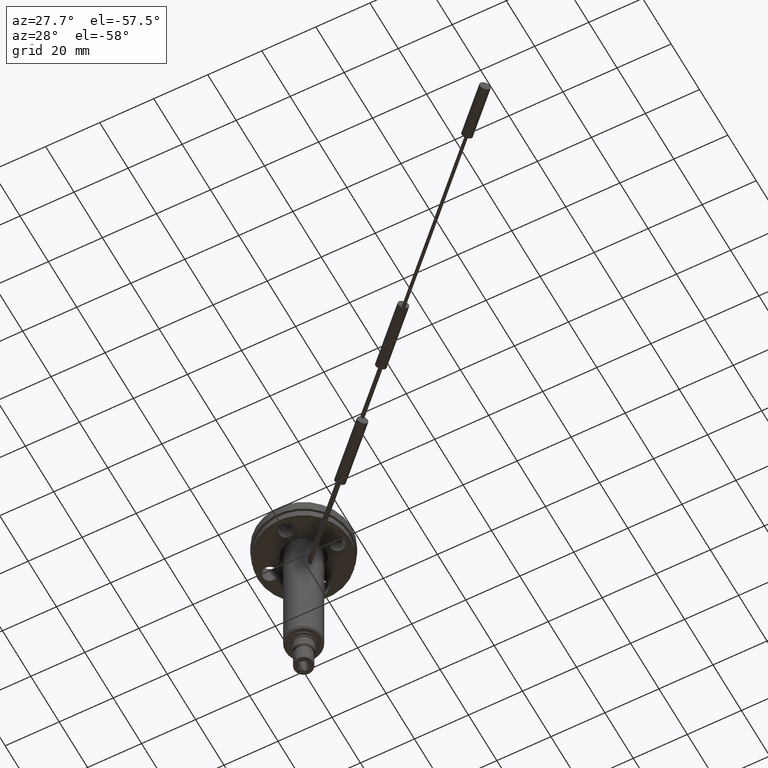
[diagram: clean part render]
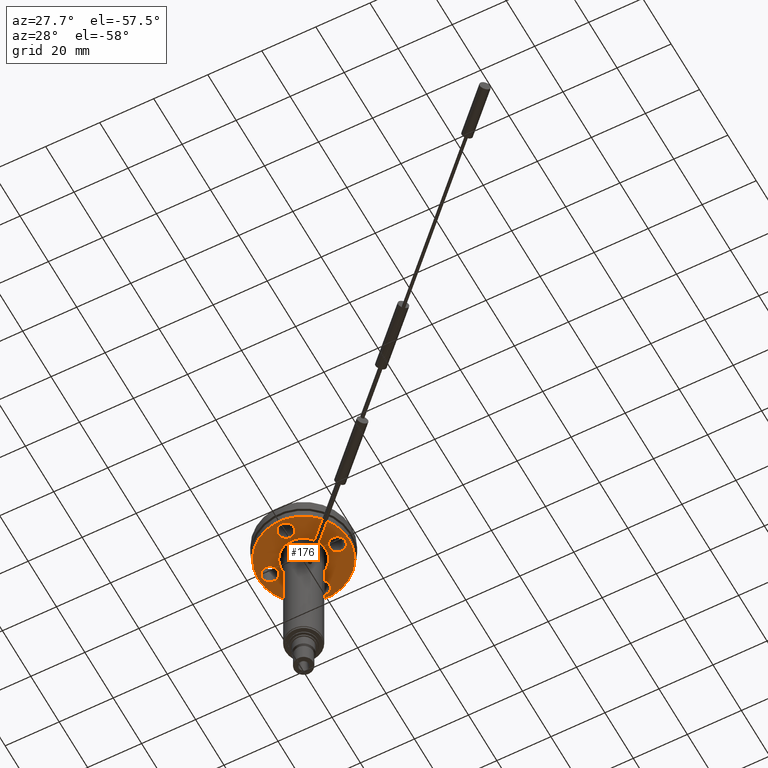
[diagram: same view with one face highlighted and labeled with its STEP entity id]
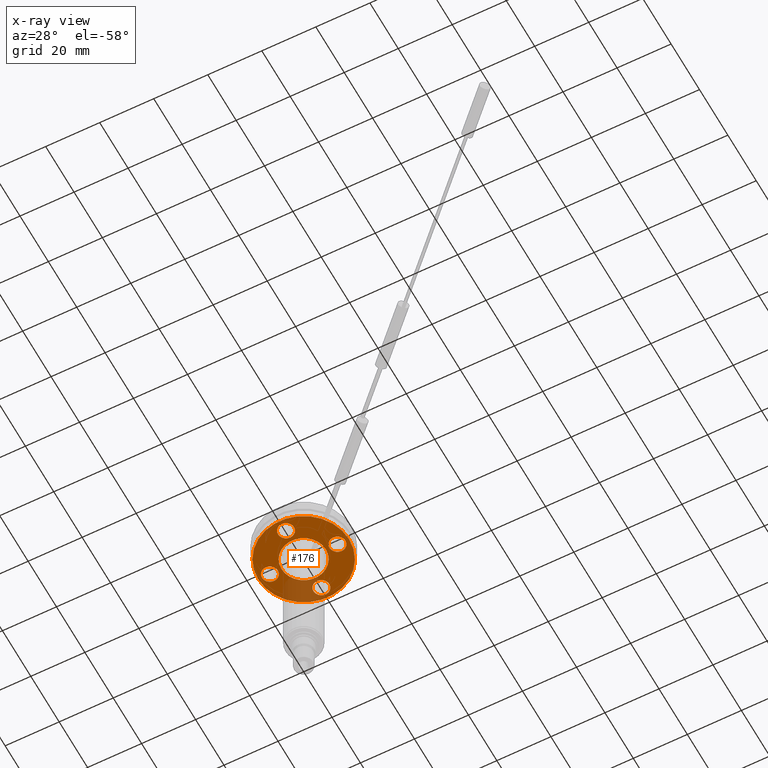
[diagram: x-ray of the same camera — body ghosted, the highlighted face saturated]
A machine part, auxiliary view. The second image highlights one B-rep face of the part: STEP entity #176.
The next image is the same camera in x-ray: the body ghosted, the highlighted face saturated — about 17% of this face is hidden behind the body in this view.
In plain terms, the highlighted planar face has unit normal (0, 0, -1).
Its self-contained STEP definition (entity closure, byte-faithful):
#76=PLANE('',#1175);
#176=ADVANCED_FACE('',(#412,#413,#414,#415,#416,#417),#76,.T.);
#308=CIRCLE('',#1169,2.95);
#309=CIRCLE('',#1170,2.95);
#310=CIRCLE('',#1171,2.95);
#311=CIRCLE('',#1172,2.95);
#312=CIRCLE('',#1173,16.8);
#313=CIRCLE('',#1174,8.2);
#412=FACE_BOUND('',#549,.T.);
#413=FACE_BOUND('',#550,.T.);
#414=FACE_BOUND('',#551,.T.);
#415=FACE_BOUND('',#552,.T.);
#416=FACE_BOUND('',#553,.T.);
#417=FACE_BOUND('',#554,.T.);
#549=EDGE_LOOP('',(#741));
#550=EDGE_LOOP('',(#742));
#551=EDGE_LOOP('',(#743));
#552=EDGE_LOOP('',(#744));
#553=EDGE_LOOP('',(#745));
#554=EDGE_LOOP('',(#746));
#741=ORIENTED_EDGE('',*,*,#1009,.T.);
#742=ORIENTED_EDGE('',*,*,#1010,.T.);
#743=ORIENTED_EDGE('',*,*,#1011,.T.);
#744=ORIENTED_EDGE('',*,*,#1012,.T.);
#745=ORIENTED_EDGE('',*,*,#1013,.T.);
#746=ORIENTED_EDGE('',*,*,#1014,.T.);
#906=VERTEX_POINT('',#1962);
#907=VERTEX_POINT('',#1964);
#908=VERTEX_POINT('',#1966);
#909=VERTEX_POINT('',#1968);
#910=VERTEX_POINT('',#1970);
#911=VERTEX_POINT('',#1972);
#1009=EDGE_CURVE('',#906,#906,#308,.T.);
#1010=EDGE_CURVE('',#907,#907,#309,.T.);
#1011=EDGE_CURVE('',#908,#908,#310,.T.);
#1012=EDGE_CURVE('',#909,#909,#311,.T.);
#1013=EDGE_CURVE('',#910,#910,#312,.T.);
#1014=EDGE_CURVE('',#911,#911,#313,.T.);
#1169=AXIS2_PLACEMENT_3D('',#1961,#1473,#1474);
#1170=AXIS2_PLACEMENT_3D('',#1963,#1475,#1476);
#1171=AXIS2_PLACEMENT_3D('',#1965,#1477,#1478);
#1172=AXIS2_PLACEMENT_3D('',#1967,#1479,#1480);
#1173=AXIS2_PLACEMENT_3D('',#1969,#1481,#1482);
#1174=AXIS2_PLACEMENT_3D('',#1971,#1483,#1484);
#1175=AXIS2_PLACEMENT_3D('',#1973,#1485,#1486);
#1473=DIRECTION('',(0.,0.,1.));
#1474=DIRECTION('',(-1.,0.,0.));
#1475=DIRECTION('',(0.,0.,1.));
#1476=DIRECTION('',(-1.,0.,0.));
#1477=DIRECTION('',(0.,0.,1.));
#1478=DIRECTION('',(-1.,0.,0.));
#1479=DIRECTION('',(0.,0.,1.));
#1480=DIRECTION('',(-1.,0.,0.));
#1481=DIRECTION('',(0.,0.,-1.));
#1482=DIRECTION('',(-1.,0.,0.));
#1483=DIRECTION('',(0.,0.,1.));
#1484=DIRECTION('',(-1.,0.,0.));
#1485=DIRECTION('',(0.,0.,-1.));
#1486=DIRECTION('',(-1.,0.,0.));
#1961=CARTESIAN_POINT('',(0.,12.5,-13.));
#1962=CARTESIAN_POINT('',(-2.95,12.5,-13.));
#1963=CARTESIAN_POINT('',(12.5,0.,-13.));
#1964=CARTESIAN_POINT('',(9.55,0.,-13.));
#1965=CARTESIAN_POINT('',(0.,-12.5,-13.));
#1966=CARTESIAN_POINT('',(-2.95,-12.5,-13.));
#1967=CARTESIAN_POINT('',(-12.5,0.,-13.));
#1968=CARTESIAN_POINT('',(-15.45,0.,-13.));
#1969=CARTESIAN_POINT('',(0.,0.,-13.));
#1970=CARTESIAN_POINT('',(-16.8,0.,-13.));
#1971=CARTESIAN_POINT('',(0.,0.,-13.));
#1972=CARTESIAN_POINT('',(-8.2,0.,-13.));
#1973=CARTESIAN_POINT('',(-17.,0.,-13.));